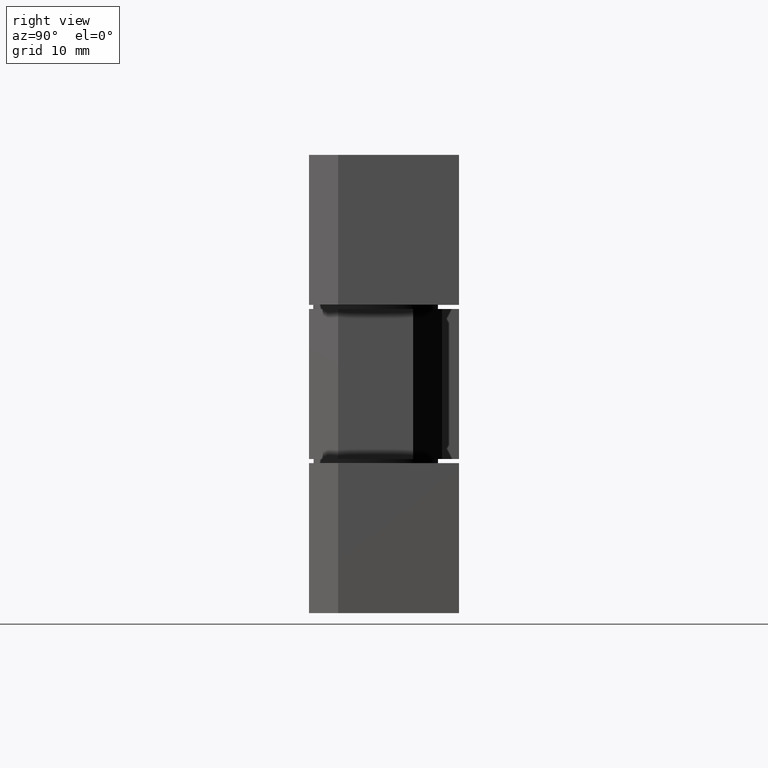
[diagram: clean part render]
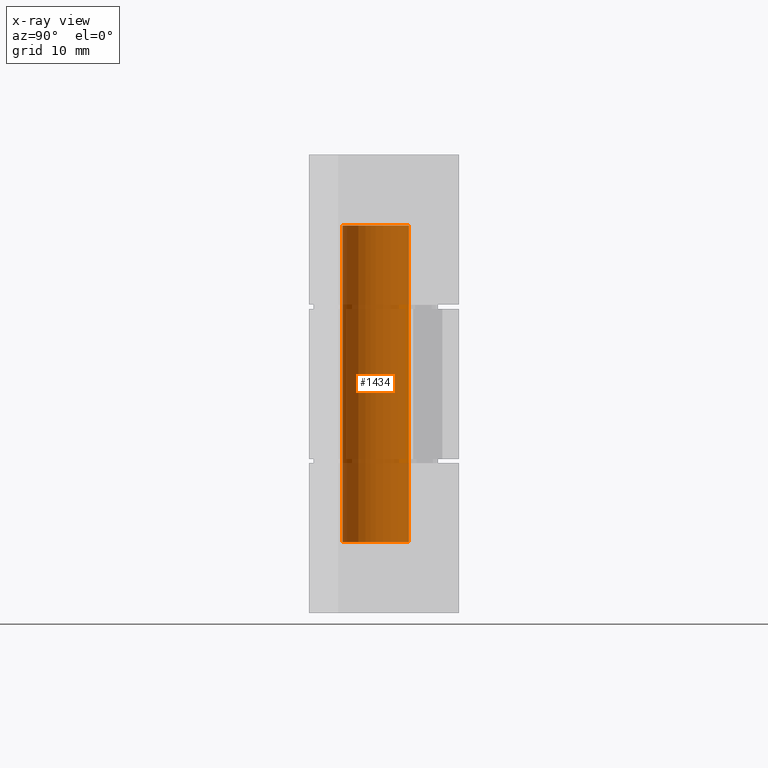
[diagram: x-ray — body ghosted, one internal face saturated and labeled with its STEP entity id]
A machine part, right view, then the same camera in x-ray: the body is ghosted and one INTERNAL B-rep face — a face not visible from any outside direction — is saturated and labeled: STEP entity #1434.
In plain terms, the highlighted face is a freeform B-spline surface patch.
Its self-contained STEP definition (entity closure, byte-faithful):
#1332=CARTESIAN_POINT('',(0.472136938627034,-3.972038105454666,47.450002253753581));
#1333=CARTESIAN_POINT('',(0.358458914551911,-3.985550461794422,47.450002253753574));
#1334=CARTESIAN_POINT('',(0.244194158139428,-3.992539193687467,47.450002253753567));
#1335=CARTESIAN_POINT('',(-3.748345035548039,-4.236733351826894,47.450002253753581));
#1336=CARTESIAN_POINT('',(-3.992539193687467,-0.244194158139428,47.450002253753567));
#1337=CARTESIAN_POINT('',(-4.236733351826894,3.748345035548039,47.450002253753581));
#1338=CARTESIAN_POINT('',(-0.244194158139428,3.992539193687467,47.450002253753567));
#1339=CARTESIAN_POINT('',(0.472136938627034,-3.972038105454666,7.526250357477822));
#1340=CARTESIAN_POINT('',(0.358458914551911,-3.985550461794422,7.526250357477822));
#1341=CARTESIAN_POINT('',(0.244194158139428,-3.992539193687467,7.526250357477821));
#1342=CARTESIAN_POINT('',(-3.748345035548039,-4.236733351826894,7.526250357477822));
#1343=CARTESIAN_POINT('',(-3.992539193687467,-0.244194158139428,7.526250357477821));
#1344=CARTESIAN_POINT('',(-4.236733351826894,3.748345035548039,7.526250357477822));
#1345=CARTESIAN_POINT('',(-0.244194158139428,3.992539193687467,7.526250357477821));
#1353=(BOUNDED_SURFACE()B_SPLINE_SURFACE(2,1,((#1332,#1339),(#1333,#1340),(#1334,#1341),(#1335,#1342),(#1336,#1343),(#1337,#1344),(#1338,#1345)),.UNSPECIFIED.,.F.,.F.,.U.)B_SPLINE_SURFACE_WITH_KNOTS((3,2,2,3),(2,2),(0.0,0.265096679918781,6.892513677888299,13.519930675857820),(0.0,39.923751896275760),.UNSPECIFIED.)GEOMETRIC_REPRESENTATION_ITEM()RATIONAL_B_SPLINE_SURFACE(((0.977505800795127,0.977505800795127),(0.988284271247462,0.988284271247462),(1.0,1.0),(0.707106781186548,0.707106781186548),(1.0,1.0),(0.707106781186548,0.707106781186548),(1.0,1.0)))REPRESENTATION_ITEM('')SURFACE());
#1354=CARTESIAN_POINT('',(0.472136938677018,-3.972038105448724,8.500000403728446));
#1355=VERTEX_POINT('',#1354);
#1356=CARTESIAN_POINT('',(-4.0,0.0,8.500000403728450));
#1357=VERTEX_POINT('',#1356);
#1358=CARTESIAN_POINT('',(0.472136938677018,-3.972038105448724,8.500000403728446));
#1359=CARTESIAN_POINT('',(0.236896478658153,-4.000000000000001,8.500000403728450));
#1360=CARTESIAN_POINT('',(0.0,-4.0,8.500000403728450));
#1361=CARTESIAN_POINT('',(-4.000000000000000,-4.000000000000000,8.500000403728450));
#1362=CARTESIAN_POINT('',(-4.0,0.0,8.500000403728450));
#1370=(BOUNDED_CURVE()B_SPLINE_CURVE(2,(#1358,#1359,#1360,#1361,#1362),.UNSPECIFIED.,.F.,.U.)B_SPLINE_CURVE_WITH_KNOTS((3,2,3),(0.229562473511391,0.250000000000000,0.500000000000000),.UNSPECIFIED.)CURVE()GEOMETRIC_REPRESENTATION_ITEM()RATIONAL_B_SPLINE_CURVE((0.956026754179549,0.976055948328664,1.0,0.707106781186548,1.0))REPRESENTATION_ITEM(''));
#1371=EDGE_CURVE('',#1355,#1357,#1370,.T.);
#1372=ORIENTED_EDGE('',*,*,#1371,.F.);
#1373=CARTESIAN_POINT('',(0.472136938677019,-3.972038105448724,46.500002208631003));
#1374=VERTEX_POINT('',#1373);
#1375=CARTESIAN_POINT('',(0.472136938677019,-3.972038105448724,46.500002208631003));
#1376=CARTESIAN_POINT('',(0.472136938677018,-3.972038105448724,8.500000403728446));
#1377=QUASI_UNIFORM_CURVE('',1,(#1375,#1376),.UNSPECIFIED.,.F.,.U.);
#1378=EDGE_CURVE('',#1374,#1355,#1377,.T.);
#1379=ORIENTED_EDGE('',*,*,#1378,.F.);
#1380=CARTESIAN_POINT('',(-4.0,0.0,46.500002208631003));
#1381=VERTEX_POINT('',#1380);
#1382=CARTESIAN_POINT('',(0.472136938677019,-3.972038105448724,46.500002208631003));
#1383=CARTESIAN_POINT('',(0.236896478658153,-4.000000000000001,46.500002208630995));
#1384=CARTESIAN_POINT('',(0.0,-4.0,46.500002208631003));
#1385=CARTESIAN_POINT('',(-4.000000000000000,-4.000000000000000,46.500002208631003));
#1386=CARTESIAN_POINT('',(-4.0,0.0,46.500002208631003));
#1394=(BOUNDED_CURVE()B_SPLINE_CURVE(2,(#1382,#1383,#1384,#1385,#1386),.UNSPECIFIED.,.F.,.U.)B_SPLINE_CURVE_WITH_KNOTS((3,2,3),(0.229562473511391,0.250000000000000,0.500000000000000),.UNSPECIFIED.)CURVE()GEOMETRIC_REPRESENTATION_ITEM()RATIONAL_B_SPLINE_CURVE((0.956026754179549,0.976055948328664,1.0,0.707106781186548,1.0))REPRESENTATION_ITEM(''));
#1395=EDGE_CURVE('',#1374,#1381,#1394,.T.);
#1396=ORIENTED_EDGE('',*,*,#1395,.T.);
#1397=CARTESIAN_POINT('',(-0.244188827003908,3.992539519746539,46.500002208631003));
#1398=VERTEX_POINT('',#1397);
#1399=CARTESIAN_POINT('',(-4.0,0.0,46.500002208631003));
#1400=CARTESIAN_POINT('',(-4.0,3.762829301417618,46.500002208631003));
#1401=CARTESIAN_POINT('',(-0.244188827003907,3.992539519746539,46.500002208631017));
#1409=(BOUNDED_CURVE()B_SPLINE_CURVE(2,(#1399,#1400,#1401),.UNSPECIFIED.,.F.,.U.)B_SPLINE_CURVE_WITH_KNOTS((3,3),(0.500000000000000,0.739333192639325),.UNSPECIFIED.)CURVE()GEOMETRIC_REPRESENTATION_ITEM()RATIONAL_B_SPLINE_CURVE((1.0,0.719603723355872,0.976072535459093))REPRESENTATION_ITEM(''));
#1410=EDGE_CURVE('',#1381,#1398,#1409,.T.);
#1411=ORIENTED_EDGE('',*,*,#1410,.T.);
#1412=CARTESIAN_POINT('',(-0.244188760572017,3.992539523809509,8.500000403728464));
#1413=VERTEX_POINT('',#1412);
#1414=CARTESIAN_POINT('',(-0.244188827003908,3.992539519746539,46.500002208631003));
#1415=CARTESIAN_POINT('',(-0.244188760572017,3.992539523809509,8.500000403728464));
#1416=QUASI_UNIFORM_CURVE('',1,(#1414,#1415),.UNSPECIFIED.,.F.,.U.);
#1417=EDGE_CURVE('',#1398,#1413,#1416,.T.);
#1418=ORIENTED_EDGE('',*,*,#1417,.T.);
#1419=CARTESIAN_POINT('',(-4.0,0.0,8.500000403728450));
#1420=CARTESIAN_POINT('',(-4.000000000000001,3.762829364144348,8.500000403728450));
#1421=CARTESIAN_POINT('',(-0.244188760572017,3.992539523809509,8.500000403728464));
#1429=(BOUNDED_CURVE()B_SPLINE_CURVE(2,(#1419,#1420,#1421),.UNSPECIFIED.,.F.,.U.)B_SPLINE_CURVE_WITH_KNOTS((3,3),(0.500000000000000,0.739333195510334),.UNSPECIFIED.)CURVE()GEOMETRIC_REPRESENTATION_ITEM()RATIONAL_B_SPLINE_CURVE((1.0,0.719603719992276,0.976072541612223))REPRESENTATION_ITEM(''));
#1430=EDGE_CURVE('',#1357,#1413,#1429,.T.);
#1431=ORIENTED_EDGE('',*,*,#1430,.F.);
#1432=EDGE_LOOP('',(#1372,#1379,#1396,#1411,#1418,#1431));
#1433=FACE_OUTER_BOUND('',#1432,.T.);
#1434=ADVANCED_FACE('',(#1433),#1353,.T.);